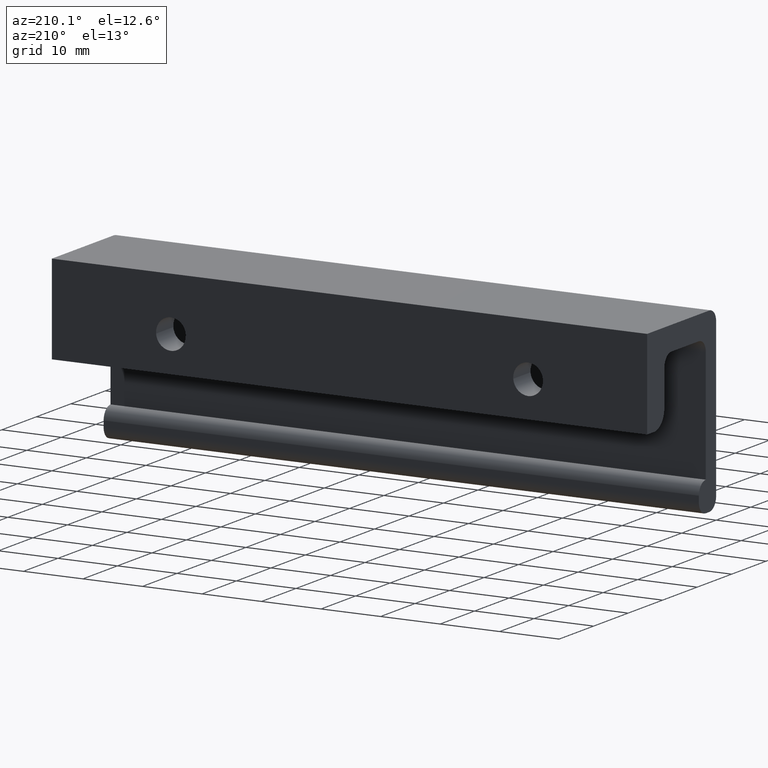
[diagram: clean part render]
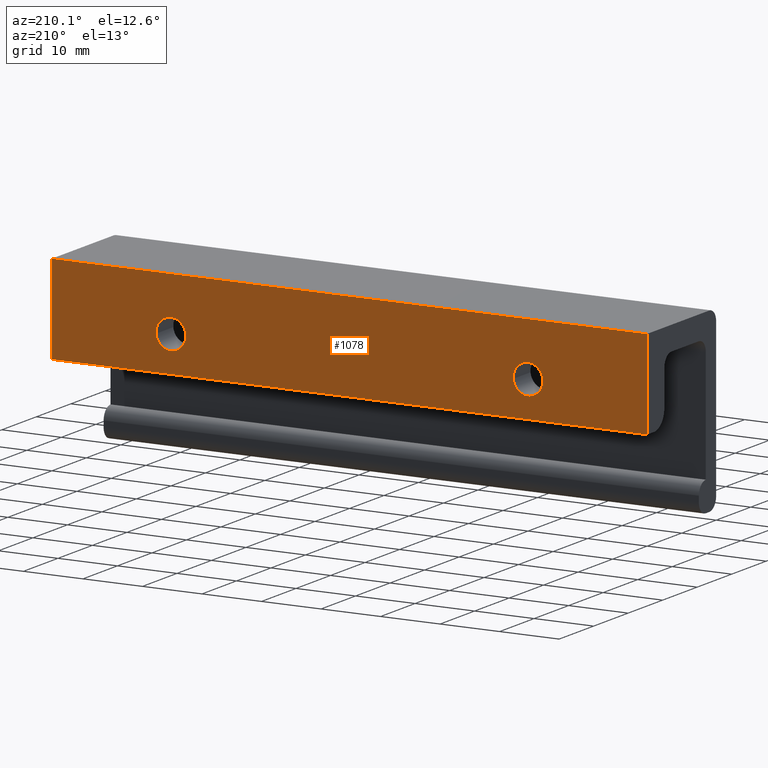
[diagram: same view with one face highlighted and labeled with its STEP entity id]
A machine part, auxiliary view. The second image highlights one B-rep face of the part: STEP entity #1078.
In plain terms, the highlighted face is a freeform B-spline surface patch.
Its self-contained STEP definition (entity closure, byte-faithful):
#62=CARTESIAN_POINT('',(20.0,0.0,-6.499999999999999));
#63=VERTEX_POINT('',#62);
#64=CARTESIAN_POINT('',(17.507706665690229,-2.220446E-016,-8.803852260387494));
#65=VERTEX_POINT('',#64);
#66=CARTESIAN_POINT('',(20.0,0.0,-6.499999999999999));
#67=CARTESIAN_POINT('',(17.689023771399334,0.0,-6.499999999999999));
#68=CARTESIAN_POINT('',(17.507706665690232,-2.220446E-016,-8.803852260387494));
#76=(BOUNDED_CURVE()B_SPLINE_CURVE(2,(#66,#67,#68),.UNSPECIFIED.,.F.,.U.)B_SPLINE_CURVE_WITH_KNOTS((3,3),(0.0,0.236331300592475),.UNSPECIFIED.)CURVE()GEOMETRIC_REPRESENTATION_ITEM()RATIONAL_B_SPLINE_CURVE((1.0,0.723120658652401,0.969723356087730))REPRESENTATION_ITEM(''));
#77=EDGE_CURVE('',#63,#65,#76,.T.);
#79=CARTESIAN_POINT('',(22.492293334309771,-2.220446E-016,-9.196147739612508));
#80=VERTEX_POINT('',#79);
#81=CARTESIAN_POINT('',(22.492293334309768,-2.220446E-016,-9.196147739612508));
#82=CARTESIAN_POINT('',(22.500000000000004,0.0,-9.098225267813428));
#83=CARTESIAN_POINT('',(22.500000000000000,0.0,-9.0));
#84=CARTESIAN_POINT('',(22.500000000000000,0.0,-6.499999999999999));
#85=CARTESIAN_POINT('',(20.0,0.0,-6.499999999999999));
#93=(BOUNDED_CURVE()B_SPLINE_CURVE(2,(#81,#82,#83,#84,#85),.UNSPECIFIED.,.F.,.U.)B_SPLINE_CURVE_WITH_KNOTS((3,2,3),(0.736331300592475,0.750000000000000,1.0),.UNSPECIFIED.)CURVE()GEOMETRIC_REPRESENTATION_ITEM()RATIONAL_B_SPLINE_CURVE((0.969723356087730,0.983986122534146,1.0,0.707106781186548,1.0))REPRESENTATION_ITEM(''));
#94=EDGE_CURVE('',#80,#63,#93,.T.);
#161=CARTESIAN_POINT('',(20.0,0.0,-11.500000000000000));
#162=VERTEX_POINT('',#161);
#163=CARTESIAN_POINT('',(17.507706665690236,-2.220446E-016,-8.803852260387494));
#164=CARTESIAN_POINT('',(17.500000000000000,0.0,-8.901774732186572));
#165=CARTESIAN_POINT('',(17.500000000000000,0.0,-9.0));
#166=CARTESIAN_POINT('',(17.499999999999996,0.0,-11.500000000000000));
#167=CARTESIAN_POINT('',(20.0,0.0,-11.500000000000000));
#175=(BOUNDED_CURVE()B_SPLINE_CURVE(2,(#163,#164,#165,#166,#167),.UNSPECIFIED.,.F.,.U.)B_SPLINE_CURVE_WITH_KNOTS((3,2,3),(0.236331300592475,0.250000000000000,0.500000000000000),.UNSPECIFIED.)CURVE()GEOMETRIC_REPRESENTATION_ITEM()RATIONAL_B_SPLINE_CURVE((0.969723356087730,0.983986122534146,1.0,0.707106781186548,1.0))REPRESENTATION_ITEM(''));
#176=EDGE_CURVE('',#65,#162,#175,.T.);
#210=CARTESIAN_POINT('',(20.0,0.0,-11.500000000000000));
#211=CARTESIAN_POINT('',(22.310976228600680,0.0,-11.499999999999998));
#212=CARTESIAN_POINT('',(22.492293334309764,-2.220446E-016,-9.196147739612508));
#220=(BOUNDED_CURVE()B_SPLINE_CURVE(2,(#210,#211,#212),.UNSPECIFIED.,.F.,.U.)B_SPLINE_CURVE_WITH_KNOTS((3,3),(0.500000000000000,0.736331300592476),.UNSPECIFIED.)CURVE()GEOMETRIC_REPRESENTATION_ITEM()RATIONAL_B_SPLINE_CURVE((1.0,0.723120658652400,0.969723356087732))REPRESENTATION_ITEM(''));
#221=EDGE_CURVE('',#162,#80,#220,.T.);
#244=CARTESIAN_POINT('',(80.0,0.0,-6.499999999999999));
#245=VERTEX_POINT('',#244);
#246=CARTESIAN_POINT('',(77.507706665690236,-2.220446E-016,-8.803852260387492));
#247=VERTEX_POINT('',#246);
#248=CARTESIAN_POINT('',(80.0,0.0,-6.499999999999999));
#249=CARTESIAN_POINT('',(77.689023771399334,0.0,-6.499999999999998));
#250=CARTESIAN_POINT('',(77.507706665690236,-2.220446E-016,-8.803852260387492));
#258=(BOUNDED_CURVE()B_SPLINE_CURVE(2,(#248,#249,#250),.UNSPECIFIED.,.F.,.U.)B_SPLINE_CURVE_WITH_KNOTS((3,3),(0.0,0.236331300592475),.UNSPECIFIED.)CURVE()GEOMETRIC_REPRESENTATION_ITEM()RATIONAL_B_SPLINE_CURVE((1.0,0.723120658652402,0.969723356087730))REPRESENTATION_ITEM(''));
#259=EDGE_CURVE('',#245,#247,#258,.T.);
#261=CARTESIAN_POINT('',(82.492293334309764,-2.220446E-016,-9.196147739612508));
#262=VERTEX_POINT('',#261);
#263=CARTESIAN_POINT('',(82.492293334309764,-2.220446E-016,-9.196147739612508));
#264=CARTESIAN_POINT('',(82.500000000000000,0.0,-9.098225267813429));
#265=CARTESIAN_POINT('',(82.500000000000000,0.0,-9.0));
#266=CARTESIAN_POINT('',(82.500000000000000,0.0,-6.499999999999999));
#267=CARTESIAN_POINT('',(80.0,0.0,-6.499999999999999));
#275=(BOUNDED_CURVE()B_SPLINE_CURVE(2,(#263,#264,#265,#266,#267),.UNSPECIFIED.,.F.,.U.)B_SPLINE_CURVE_WITH_KNOTS((3,2,3),(0.736331300592475,0.750000000000000,1.0),.UNSPECIFIED.)CURVE()GEOMETRIC_REPRESENTATION_ITEM()RATIONAL_B_SPLINE_CURVE((0.969723356087730,0.983986122534146,1.0,0.707106781186548,1.0))REPRESENTATION_ITEM(''));
#276=EDGE_CURVE('',#262,#245,#275,.T.);
#343=CARTESIAN_POINT('',(80.0,0.0,-11.500000000000000));
#344=VERTEX_POINT('',#343);
#345=CARTESIAN_POINT('',(77.507706665690236,-2.220446E-016,-8.803852260387492));
#346=CARTESIAN_POINT('',(77.500000000000000,0.0,-8.901774732186572));
#347=CARTESIAN_POINT('',(77.500000000000000,0.0,-9.0));
#348=CARTESIAN_POINT('',(77.500000000000014,0.0,-11.500000000000000));
#349=CARTESIAN_POINT('',(80.0,0.0,-11.500000000000000));
#357=(BOUNDED_CURVE()B_SPLINE_CURVE(2,(#345,#346,#347,#348,#349),.UNSPECIFIED.,.F.,.U.)B_SPLINE_CURVE_WITH_KNOTS((3,2,3),(0.236331300592475,0.250000000000000,0.500000000000000),.UNSPECIFIED.)CURVE()GEOMETRIC_REPRESENTATION_ITEM()RATIONAL_B_SPLINE_CURVE((0.969723356087730,0.983986122534146,1.0,0.707106781186548,1.0))REPRESENTATION_ITEM(''));
#358=EDGE_CURVE('',#247,#344,#357,.T.);
#392=CARTESIAN_POINT('',(80.0,0.0,-11.500000000000000));
#393=CARTESIAN_POINT('',(82.310976228600694,0.0,-11.499999999999998));
#394=CARTESIAN_POINT('',(82.492293334309764,-2.220446E-016,-9.196147739612508));
#402=(BOUNDED_CURVE()B_SPLINE_CURVE(2,(#392,#393,#394),.UNSPECIFIED.,.F.,.U.)B_SPLINE_CURVE_WITH_KNOTS((3,3),(0.500000000000000,0.736331300592476),.UNSPECIFIED.)CURVE()GEOMETRIC_REPRESENTATION_ITEM()RATIONAL_B_SPLINE_CURVE((1.0,0.723120658652400,0.969723356087732))REPRESENTATION_ITEM(''));
#403=EDGE_CURVE('',#344,#262,#402,.T.);
#430=CARTESIAN_POINT('',(0.0,0.0,0.0));
#431=VERTEX_POINT('',#430);
#437=CARTESIAN_POINT('',(0.0,0.0,-15.0));
#438=VERTEX_POINT('',#437);
#439=CARTESIAN_POINT('',(0.0,0.0,-15.0));
#440=CARTESIAN_POINT('',(0.0,0.0,0.0));
#441=QUASI_UNIFORM_CURVE('',1,(#439,#440),.UNSPECIFIED.,.F.,.U.);
#442=EDGE_CURVE('',#438,#431,#441,.T.);
#738=CARTESIAN_POINT('',(100.0,0.0,-15.0));
#739=VERTEX_POINT('',#738);
#745=CARTESIAN_POINT('',(100.0,0.0,0.0));
#746=VERTEX_POINT('',#745);
#747=CARTESIAN_POINT('',(100.0,0.0,-15.0));
#748=CARTESIAN_POINT('',(100.0,0.0,0.0));
#749=QUASI_UNIFORM_CURVE('',1,(#747,#748),.UNSPECIFIED.,.F.,.U.);
#750=EDGE_CURVE('',#739,#746,#749,.T.);
#772=CARTESIAN_POINT('',(100.0,0.0,0.0));
#773=CARTESIAN_POINT('',(0.0,0.0,0.0));
#774=QUASI_UNIFORM_CURVE('',1,(#772,#773),.UNSPECIFIED.,.F.,.U.);
#775=EDGE_CURVE('',#746,#431,#774,.T.);
#786=CARTESIAN_POINT('',(100.0,0.0,-15.0));
#787=CARTESIAN_POINT('',(0.0,0.0,-15.0));
#788=QUASI_UNIFORM_CURVE('',1,(#786,#787),.UNSPECIFIED.,.F.,.U.);
#789=EDGE_CURVE('',#739,#438,#788,.T.);
#1055=CARTESIAN_POINT('',(-4.994999806180597,0.0,0.749249970927090));
#1056=CARTESIAN_POINT('',(-4.994999806180597,0.0,-15.749250373258439));
#1057=CARTESIAN_POINT('',(104.995002488389600,0.0,0.749249970927090));
#1058=CARTESIAN_POINT('',(104.995002488389600,0.0,-15.749250373258439));
#1059=B_SPLINE_SURFACE_WITH_KNOTS('',1,1,((#1055,#1057),(#1056,#1058)),.UNSPECIFIED.,.F.,.F.,.U.,(2,2),(2,2),(0.0,16.498500344185530),(0.0,109.990002294570200),.UNSPECIFIED.);
#1060=ORIENTED_EDGE('',*,*,#442,.T.);
#1061=ORIENTED_EDGE('',*,*,#775,.F.);
#1062=ORIENTED_EDGE('',*,*,#750,.F.);
#1063=ORIENTED_EDGE('',*,*,#789,.T.);
#1064=EDGE_LOOP('',(#1060,#1061,#1062,#1063));
#1065=FACE_OUTER_BOUND('',#1064,.T.);
#1066=ORIENTED_EDGE('',*,*,#403,.T.);
#1067=ORIENTED_EDGE('',*,*,#276,.T.);
#1068=ORIENTED_EDGE('',*,*,#259,.T.);
#1069=ORIENTED_EDGE('',*,*,#358,.T.);
#1070=EDGE_LOOP('',(#1066,#1067,#1068,#1069));
#1071=FACE_BOUND('',#1070,.T.);
#1072=ORIENTED_EDGE('',*,*,#221,.T.);
#1073=ORIENTED_EDGE('',*,*,#94,.T.);
#1074=ORIENTED_EDGE('',*,*,#77,.T.);
#1075=ORIENTED_EDGE('',*,*,#176,.T.);
#1076=EDGE_LOOP('',(#1072,#1073,#1074,#1075));
#1077=FACE_BOUND('',#1076,.T.);
#1078=ADVANCED_FACE('',(#1065,#1071,#1077),#1059,.F.);